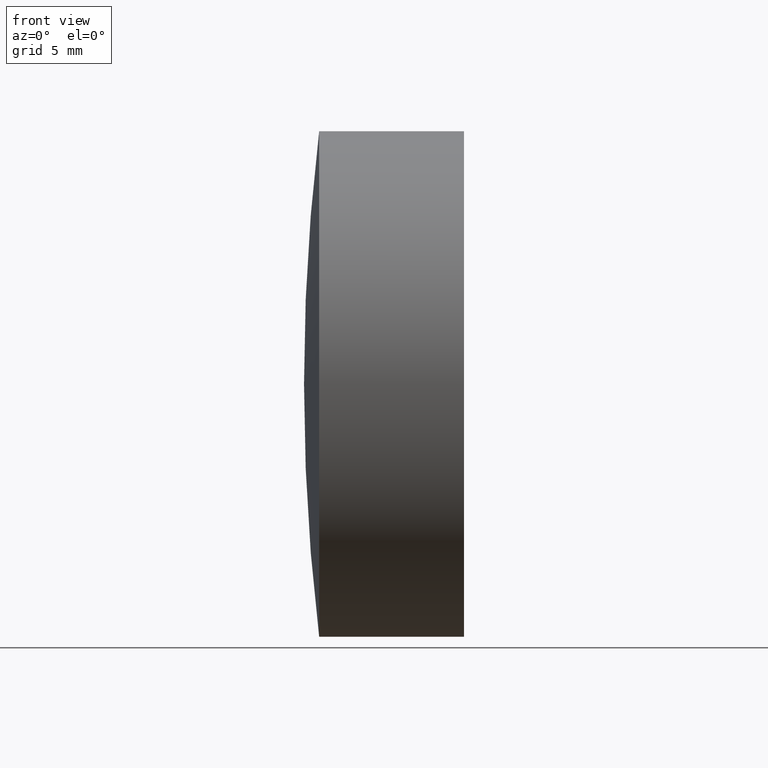
[diagram: clean part render]
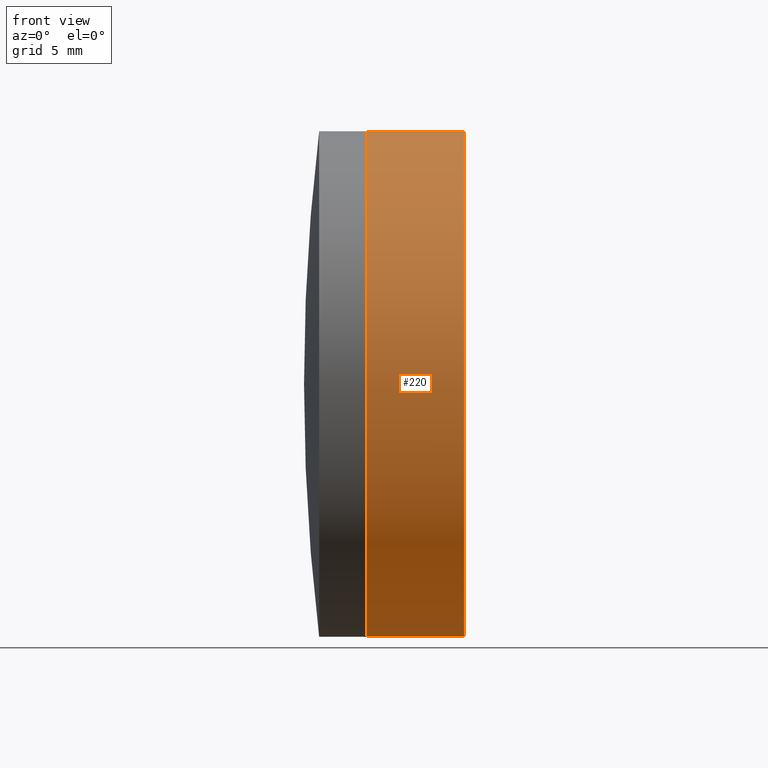
[diagram: same view with one face highlighted and labeled with its STEP entity id]
A machine part, front view. The second image highlights one B-rep face of the part: STEP entity #220.
In plain terms, the highlighted cylindrical surface (partial cylindrical patch) has radius 12.7 mm, axis along (-1, -0, -0).
Its self-contained STEP definition (entity closure, byte-faithful):
#5 = CARTESIAN_POINT ( 'NONE',  ( 345.7616526594428000, 0.0000000000000000000, 12.70000000000007900 ) ) ;
#17 = ORIENTED_EDGE ( 'NONE', *, *, #216, .T. ) ;
#21 = CYLINDRICAL_SURFACE ( 'NONE', #147, 12.70000000000001700 ) ;
#29 = DIRECTION ( 'NONE',  ( 0.0000000000000000000, 0.0000000000000000000, 1.000000000000000000 ) ) ;
#57 = CARTESIAN_POINT ( 'NONE',  ( 350.6404488445973600, 0.0000000000000000000, 0.0000000000000000000 ) ) ;
#61 = AXIS2_PLACEMENT_3D ( 'NONE', #57, #209, #29 ) ;
#63 = ORIENTED_EDGE ( 'NONE', *, *, #292, .F. ) ;
#68 = FACE_OUTER_BOUND ( 'NONE', #102, .T. ) ;
#87 = DIRECTION ( 'NONE',  ( -1.000000000000000000, -0.0000000000000000000, -0.0000000000000000000 ) ) ;
#98 = CARTESIAN_POINT ( 'NONE',  ( 345.7616526594428000, 1.555301434917148100E-015, -12.70000000000007200 ) ) ;
#102 = EDGE_LOOP ( 'NONE', ( #63, #325, #17, #342 ) ) ;
#103 = DIRECTION ( 'NONE',  ( 0.0000000000000000000, 0.0000000000000000000, 1.000000000000000000 ) ) ;
#131 = VECTOR ( 'NONE', #184, 1000.000000000000000 ) ;
#147 = AXIS2_PLACEMENT_3D ( 'NONE', #290, #288, #103 ) ;
#150 = VERTEX_POINT ( 'NONE', #5 ) ;
#169 = DIRECTION ( 'NONE',  ( 0.0000000000000000000, 0.0000000000000000000, 1.000000000000000000 ) ) ;
#174 = AXIS2_PLACEMENT_3D ( 'NONE', #219, #330, #169 ) ;
#184 = DIRECTION ( 'NONE',  ( -1.000000000000000000, -0.0000000000000000000, -0.0000000000000000000 ) ) ;
#194 = CARTESIAN_POINT ( 'NONE',  ( 350.6404488445973600, 0.0000000000000000000, 12.70000000000000300 ) ) ;
#198 = EDGE_CURVE ( 'NONE', #241, #307, #247, .T. ) ;
#209 = DIRECTION ( 'NONE',  ( -1.000000000000000000, -0.0000000000000000000, -0.0000000000000000000 ) ) ;
#216 = EDGE_CURVE ( 'NONE', #307, #150, #337, .T. ) ;
#219 = CARTESIAN_POINT ( 'NONE',  ( 345.7616526594428000, 0.0000000000000000000, 0.0000000000000000000 ) ) ;
#220 = ADVANCED_FACE ( 'NONE', ( #68 ), #21, .T. ) ;
#241 = VERTEX_POINT ( 'NONE', #286 ) ;
#246 = VECTOR ( 'NONE', #87, 1000.000000000000000 ) ;
#247 = CIRCLE ( 'NONE', #61, 12.70000000000000300 ) ;
#251 = CIRCLE ( 'NONE', #174, 12.70000000000003100 ) ;
#257 = CARTESIAN_POINT ( 'NONE',  ( -0.5519199926577972300, 0.0000000000000000000, 12.70000000000001700 ) ) ;
#268 = CARTESIAN_POINT ( 'NONE',  ( -0.5519199926577972300, 1.555301434917140600E-015, -12.70000000000001700 ) ) ;
#275 = VERTEX_POINT ( 'NONE', #98 ) ;
#286 = CARTESIAN_POINT ( 'NONE',  ( 350.6404488445973600, 1.555301434917139800E-015, -12.70000000000000300 ) ) ;
#288 = DIRECTION ( 'NONE',  ( -1.000000000000000000, -0.0000000000000000000, -0.0000000000000000000 ) ) ;
#290 = CARTESIAN_POINT ( 'NONE',  ( -0.5519199926577972300, 0.0000000000000000000, 0.0000000000000000000 ) ) ;
#292 = EDGE_CURVE ( 'NONE', #241, #275, #306, .T. ) ;
#306 = LINE ( 'NONE', #268, #246 ) ;
#307 = VERTEX_POINT ( 'NONE', #194 ) ;
#308 = EDGE_CURVE ( 'NONE', #275, #150, #251, .T. ) ;
#325 = ORIENTED_EDGE ( 'NONE', *, *, #198, .T. ) ;
#330 = DIRECTION ( 'NONE',  ( -1.000000000000000000, -0.0000000000000000000, -0.0000000000000000000 ) ) ;
#337 = LINE ( 'NONE', #257, #131 ) ;
#342 = ORIENTED_EDGE ( 'NONE', *, *, #308, .F. ) ;